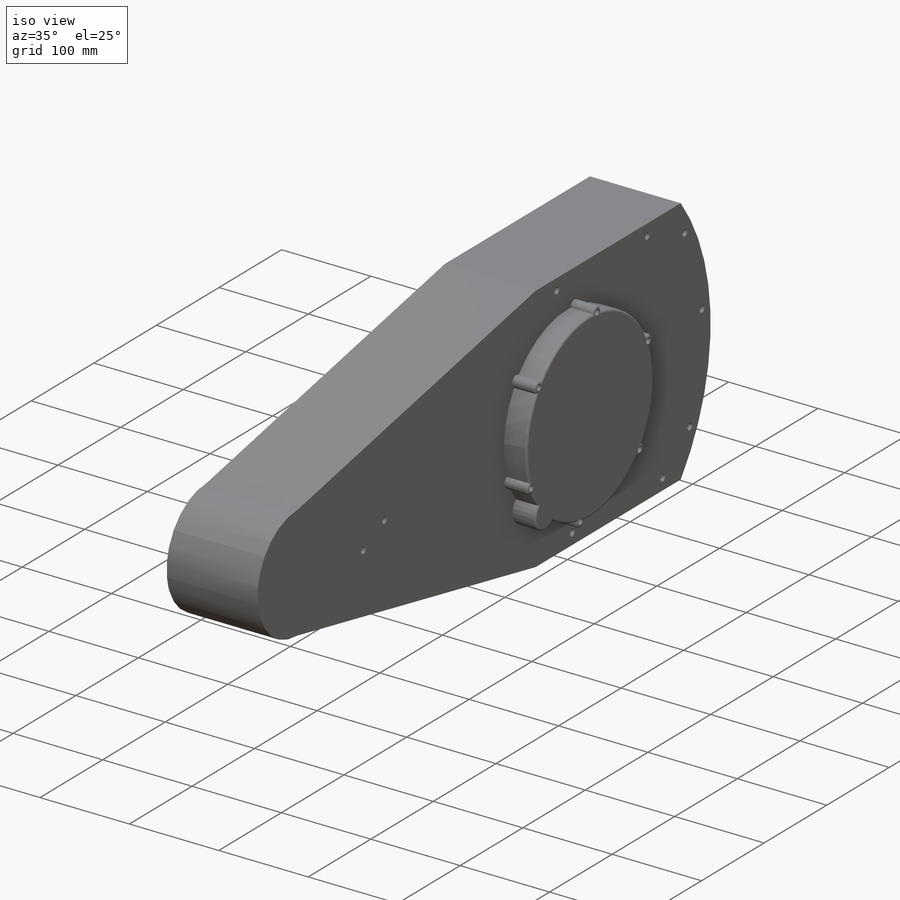
[diagram: iso view]
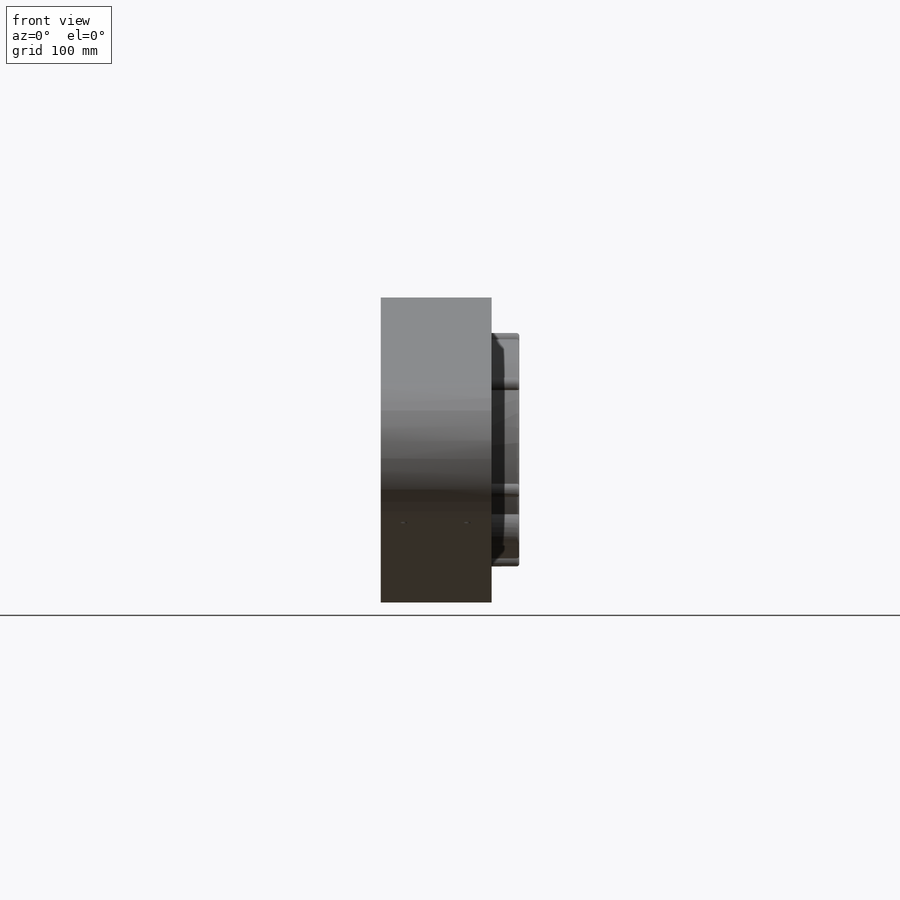
[diagram: front view]
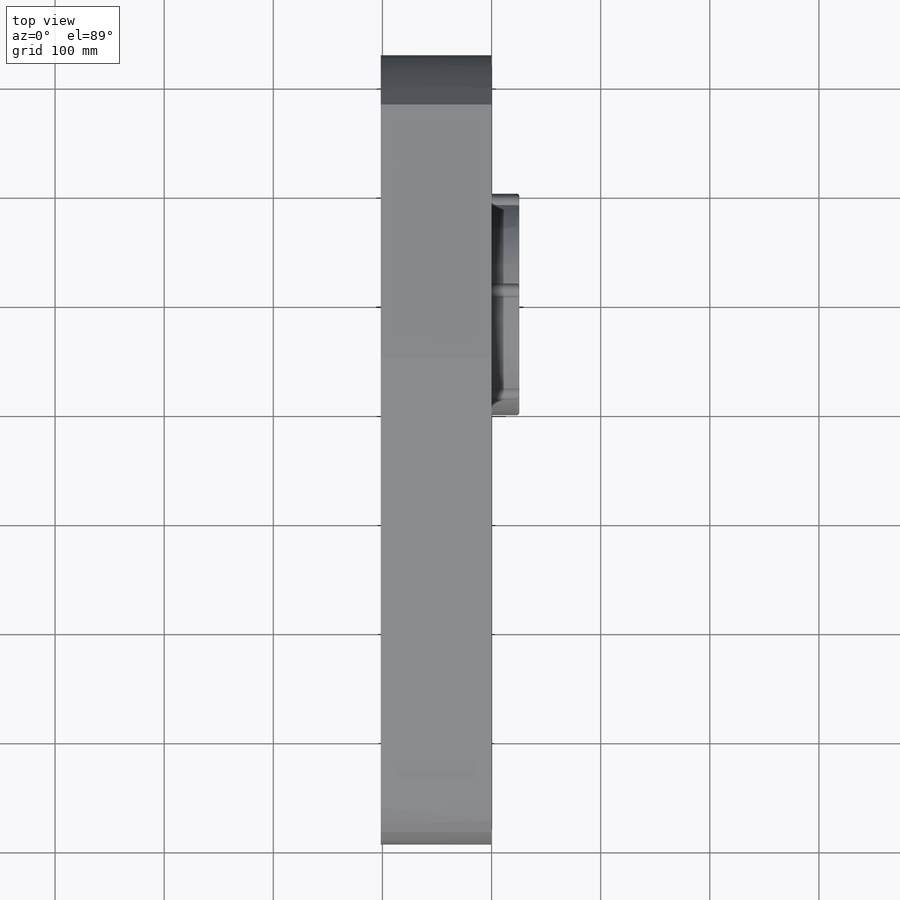
[diagram: top view]
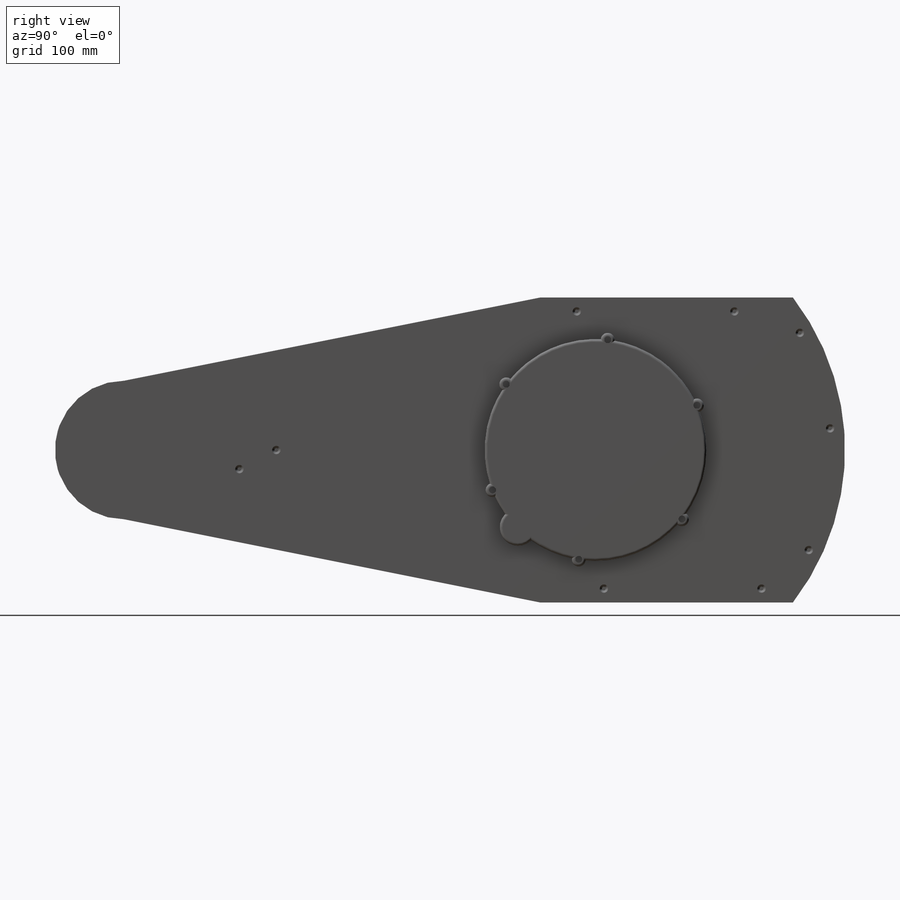
[diagram: right view]
SOLIDWORKS PART (.sldprt)
format: sldprt  version: not decoded by parser v0  size: 1,012,224 bytes
history: native  units: mm
features: sketch x10, cut_extrude x4, fillet x4, plane x3, extrude x2, material x1 (+8 scaffold rows collapsed)
feature tree (32):
  scaffold x8  (default folders/planes/origin — collapsed)
  material  "Material <sin especificar>"
  plane  "Alzado"
  plane  "Planta"
  plane  "Vista lateral"
  sketch  "Croquis2"  dims[c1.D1=203.2mm c1.D3=50.8mm c1.D5=12.7mm c2.D3=6.35mm c2.D5=25.4mm c2.D2=~388.609146mm c3.D2=45.0deg c3.D4=~388.609146mm c4.D4=22.5deg]
  extrude  "Saliente-Extruir1"  Depth=25.4mm
  sketch  "Croquis3"  dims[D1=6.35mm D2=12.7mm]
  cut_extrude  "Cortar-Extruir1"  [1 undecoded]
  fillet  "Redondeo2"  Radius=2.54mm
  sketch  "Croquis4"  dims[D1=457.2mm D5=127.0mm D2=279.4mm D3=50.8mm D4=431.8mm]
  extrude  "Saliente-Extruir2"  Depth=101.6mm
  sketch  "Croquis6"  dims[D1=76.2mm]
  sketch  "Croquis7"  dims[D1=17.78mm D2=17.78mm]
  fillet  "Línea de partición3"  [1 undecoded]
  sketch  "Croquis8"
  sketch  "Croquis9"  dims[D1=25.4mm]
  fillet  "Línea de partición6"  [1 undecoded]
  fillet  "Línea de partición7"  [1 undecoded]
  sketch  "Croquis10"  dims[D1=12.7mm]
  cut_extrude  "Cortar-Extruir2"  Depth=2.54mm
  sketch  "Croquis11"  dims[D1=7.62mm]
  cut_extrude  "Cortar-Extruir3"  Depth=2.54mm
  sketch  "Croquis12"  dims[D1=12.7mm]
  cut_extrude  "Cortar-Extruir4"  Depth=2.54mm
decode coverage: 15 of 20 modeling features carry decoded parameters
note: ~ marks probable driven/reference dimensions
note: 4 parameter values undecoded
summary: no parameter record found for 4 features
note: suppression state not decoded; provenance and decode notes live in map.json
